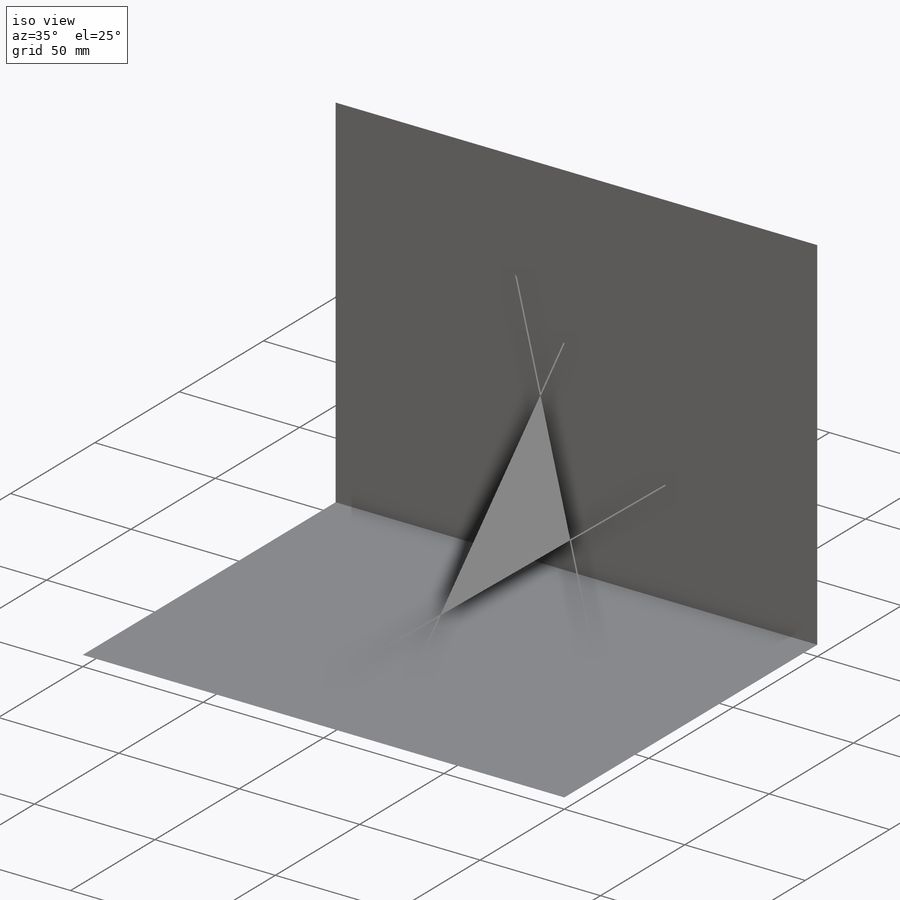
[diagram: iso view]
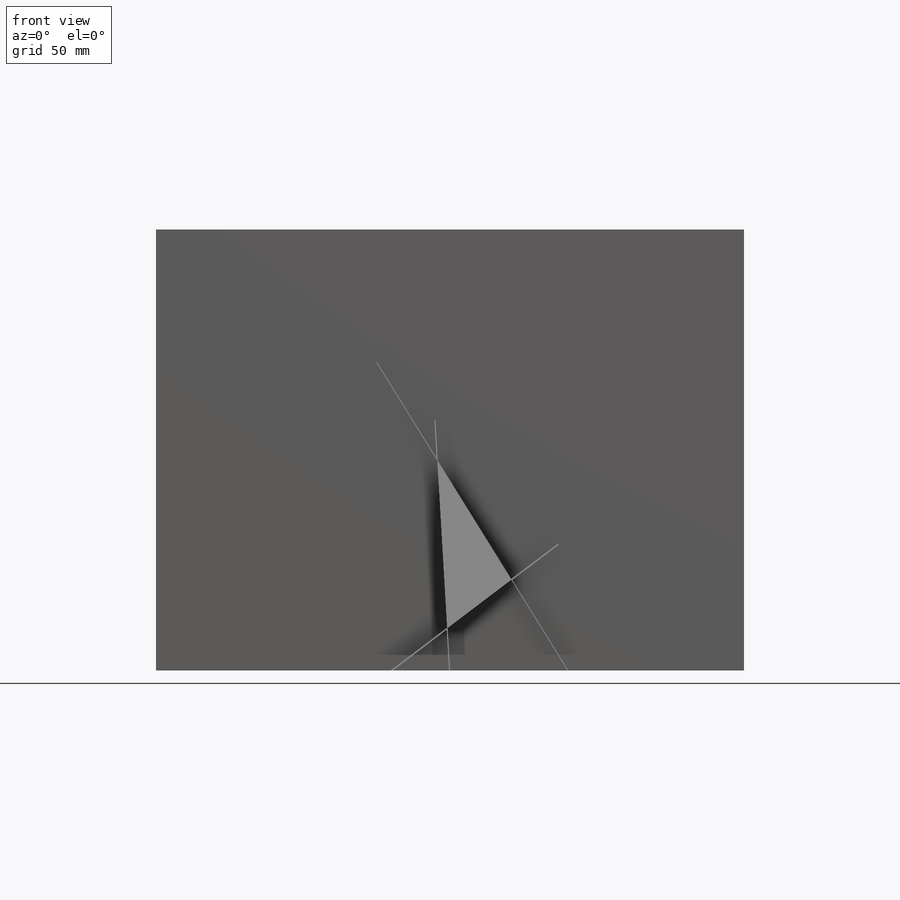
[diagram: front view]
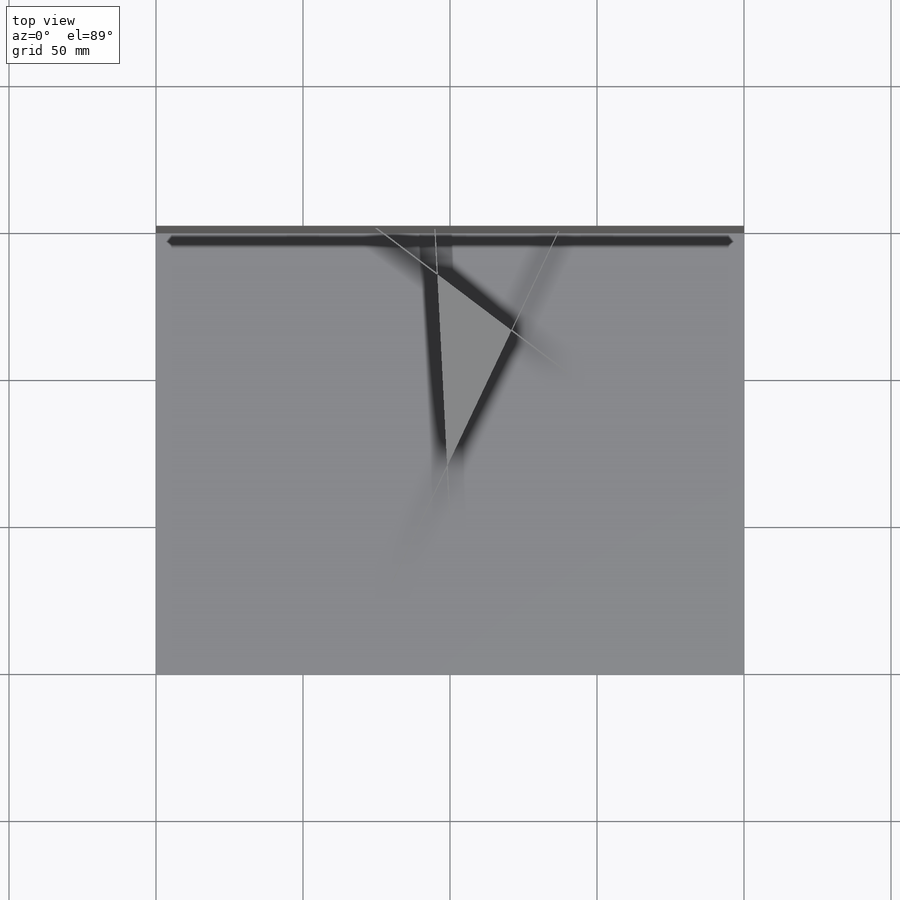
[diagram: top view]
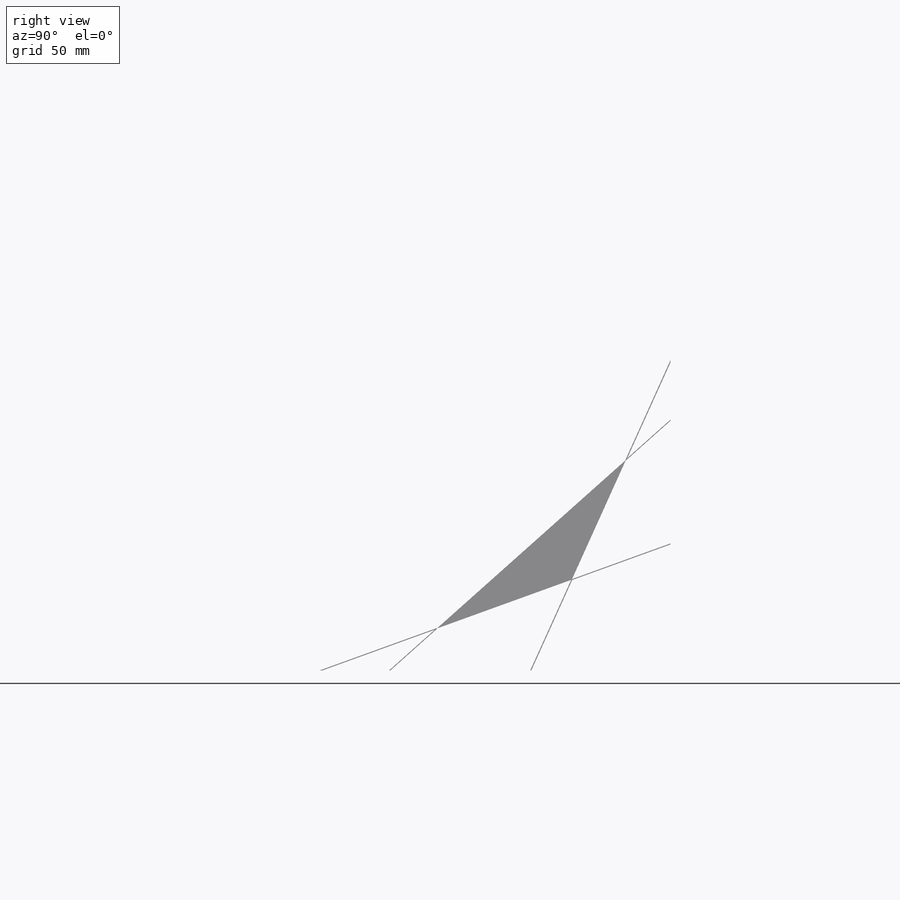
[diagram: right view]
SOLIDWORKS PART (.sldprt)
format: sldprt  version: not decoded by parser v0  size: 663,040 bytes
history: native  units: mm
features: sketch x24, extrude x19, plane x3, material x1 (+13 scaffold rows collapsed)
feature tree (60):
  scaffold x13  (default folders/planes/origin — collapsed)
  material  "Material <not specified>"
  sketch  "Sketch1"  dims[D1=150.0mm D2=200.0mm D3=~8.343135mm]
  extrude  "Extrude1"  Depth=0.0001mm
  sketch  "Sketch2"  dims[D1=150.0mm D2=200.0mm]
  extrude  "Extrude2"  Depth=0.0001mm
  sketch  "Sketch3"  dims[c1.D1=~169.461503mm c2.D1=45.0deg c2.D2=20.0mm]
  sketch  "Sketch4"  dims[c1.D1=200.0mm c2.D1=50.0deg c2.D2=20.0mm]
  sketch  "3DSketch1"
  sketch  "Sketch5"
  sketch  "Surface-Fill2"
  plane  "Plane1"  Offset=0.001mm
  sketch  "Sketch6"
  extrude  "Extrude3"  Depth=0.001mm
  sketch  "Sketch7"  dims[D1=0.25mm D2=0.25mm]
  extrude  "Extrude4"  Depth=0.0001mm
  sketch  "Sketch8"  dims[D1=0.25mm D2=0.25mm]
  extrude  "Extrude5"  Depth=0.0001mm
  sketch  "Sketch10"  dims[D1=0.25mm D2=0.25mm]
  extrude  "Extrude6"  Depth=0.0001mm
  sketch  "Sketch11"  dims[D1=0.25mm D2=0.25mm]
  extrude  "Extrude7"  Depth=0.0001mm
  sketch  "Sketch12"  dims[D1=0.25mm D2=0.25mm]
  extrude  "Extrude8"  Depth=0.0001mm
  plane  "Plane2"  Offset=0.001mm
  sketch  "Sketch14"  dims[D1=0.25mm D2=0.25mm]
  extrude  "Extrude9"  Depth=0.0001mm
  sketch  "Sketch15"  dims[D1=0.0mm D2=0.0mm]
  extrude  "Extrude10"  Depth=0.0001mm
  sketch  "Sketch16"  dims[D1=0.0mm D2=0.0mm]
  extrude  "Extrude11"  Depth=0.0001mm
  sketch  "Sketch18"  dims[c1.D1=0.0mm c1.D2=0.0mm c2.D1=0.0mm c2.D2=0.0mm]
  sketch  "Sketch19"  dims[D1=0.5mm D2=0.5mm]
  extrude  "Extrude13"  Depth=0.0001mm
  plane  "Plane3"  Offset=0.001mm
  extrude  "Extrude14"  [1 undecoded]
  sketch  "Sketch19<2>"  dims[D1=0.0001mm]
  sketch  "Sketch20"  dims[D1=0.5mm D2=0.5mm]
  extrude  "Extrude15"  Depth=0.0001mm
  extrude  "Extrude16"  [1 undecoded]
  sketch  "Sketch20<2>"  dims[D1=0.0001mm]
  sketch  "Sketch22"  dims[D1=0.0mm D2=0.0mm]
  sketch  "Sketch23"  dims[D1=0.0mm D2=0.0mm]
  extrude  "Extrude17"  Depth=0.0001mm
  extrude  "Extrude18"  Depth=0.0001mm
  sketch  "Sketch25"  dims[D1=0.0mm D2=0.0mm]
  extrude  "Extrude19"  Depth=0.0001mm
  extrude  "Extrude22"  Depth=0.0001mm
decode coverage: 37 of 43 modeling features carry decoded parameters
note: ~ marks probable driven/reference dimensions
note: 2 parameter values undecoded
note: suppression state not decoded; provenance and decode notes live in map.json
